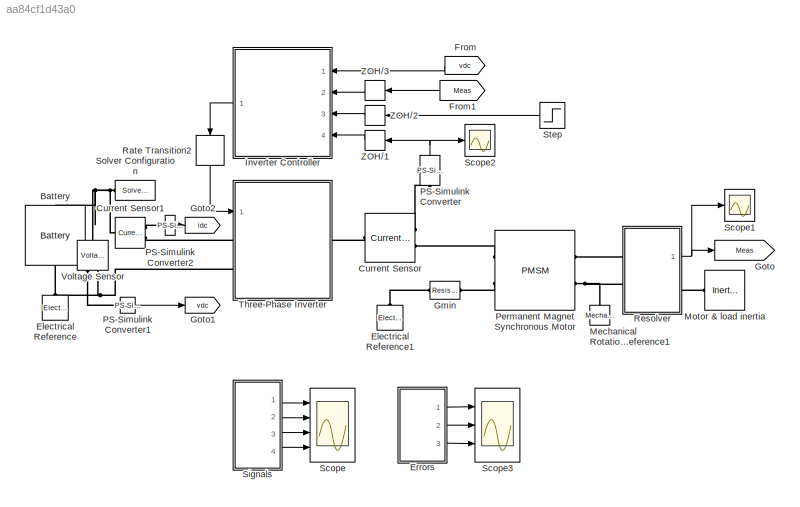
MODEL slx_aa84cf1d43a0
KIND model
CONFIG AbsTol = 1e-3
CONFIG EnableMultiTasking = on
CONFIG FixedStep = auto
CONFIG InitFcn = DriveTrainInitialise;
CONFIG MaxStep = auto
CONFIG MinStep = auto
CONFIG RelTol = 1e-3
CONFIG SampleTimeConstraint = Unconstrained
CONFIG Solver = VariableStepAuto
CONFIG SolverName = VariableStepAuto
CONFIG StartTime = 0.0
CONFIG StopTime = 0.6
BLOCK [Reference] Battery  REF=ee_lib/Sources/Battery
  Ports = [0, 0, 0, 0, 0, 1, 1]
  SourceBlock = ee_lib/Sources/Battery
  SourceProductBaseCode = PS
  SourceProductName = Simscape Electrical
  SourceType = Battery
BLOCK [Reference] Current Sensor  REF=ee_lib/Sensors &
Transducers/Current Sensor
(Three-Phase)
  Ports = [0, 0, 0, 0, 0, 1, 2]
  SourceBlock = ee_lib/Sensors &\nTransducers/Current Sensor\n(Three-Phase)
  SourceProductBaseCode = PS
  SourceProductName = Simscape Electrical
  SourceType = Current Sensor\n(Three-Phase)
BLOCK [Reference] Current Sensor1  REF=fl_lib/Electrical/Electrical Sensors/Current Sensor
  Ports = [0, 0, 0, 0, 0, 1, 2]
  SourceBlock = fl_lib/Electrical/Electrical Sensors/Current Sensor
  SourceProductBaseCode = SS
  SourceProductName = Simscape
  SourceType = Current Sensor
BLOCK [Reference] Electrical Reference  REF=fl_lib/Electrical/Electrical Elements/Electrical Reference
  Ports = [0, 0, 0, 0, 0, 1]
  SourceBlock = fl_lib/Electrical/Electrical Elements/Electrical Reference
  SourceProductBaseCode = SS
  SourceProductName = Simscape
  SourceType = Electrical Reference
BLOCK [Reference] Electrical Reference1  REF=fl_lib/Electrical/Electrical Elements/Electrical Reference
  Ports = [0, 0, 0, 0, 0, 1]
  SourceBlock = fl_lib/Electrical/Electrical Elements/Electrical Reference
  SourceProductBaseCode = SS
  SourceProductName = Simscape
  SourceType = Electrical Reference
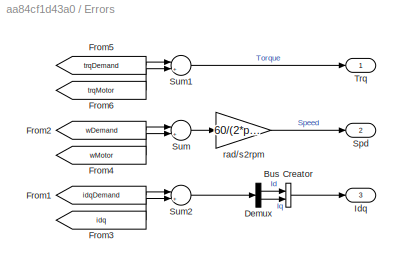
BLOCK [SubSystem] Errors
  Ports = [0, 3]
  RequestExecContextInheritance = off
BLOCK [BusCreator] Errors/Bus Creator
  DisplayOption = bar
  InheritFromInputs = on
  Inputs = 2
  Ports = [2, 1]
BLOCK [Demux] Errors/Demux
  DisplayOption = bar
  Outputs = 2
  Ports = [1, 2]
BLOCK [From] Errors/From1
  GotoTag = idqDemand
  TagVisibility = global
BLOCK [From] Errors/From2
  GotoTag = wDemand
  TagVisibility = global
BLOCK [From] Errors/From3
  GotoTag = idq
  TagVisibility = global
BLOCK [From] Errors/From4
  GotoTag = wMotor
  TagVisibility = global
BLOCK [From] Errors/From5
  GotoTag = trqDemand
  TagVisibility = global
BLOCK [From] Errors/From6
  GotoTag = trqMotor
  TagVisibility = global
BLOCK [Outport] Errors/Idq
  IconDisplay = Port number
  Port = 3
BLOCK [Outport] Errors/Spd
  IconDisplay = Port number
  Port = 2
BLOCK [Sum] Errors/Sum
  IconShape = round
  InputSameDT = off
  Inputs = |+-
  OutDataTypeStr = Inherit: Inherit via internal rule
  Ports = [2, 1]
  SaturateOnIntegerOverflow = off
BLOCK [Sum] Errors/Sum1
  IconShape = round
  InputSameDT = off
  Inputs = |+-
  OutDataTypeStr = Inherit: Inherit via internal rule
  Ports = [2, 1]
  SaturateOnIntegerOverflow = off
BLOCK [Sum] Errors/Sum2
  IconShape = round
  InputSameDT = off
  Inputs = |+-
  OutDataTypeStr = Inherit: Inherit via internal rule
  Ports = [2, 1]
  SaturateOnIntegerOverflow = off
BLOCK [Outport] Errors/Trq
  IconDisplay = Port number
BLOCK [Gain] Errors/rad//s2rpm
  Gain = 60/(2*pi)
  OutDataTypeStr = Inherit: Inherit via internal rule
  ParamDataTypeStr = Inherit: Inherit via internal rule
  SaturateOnIntegerOverflow = off
BLOCK [From] From
  GotoTag = vdc
  TagVisibility = global
BLOCK [From] From1
  GotoTag = Meas
BLOCK [Reference] Gmin  REF=fl_lib/Electrical/Electrical Elements/Resistor
  Ports = [0, 0, 0, 0, 0, 1, 1]
  SourceBlock = fl_lib/Electrical/Electrical Elements/Resistor
  SourceProductBaseCode = SS
  SourceProductName = Simscape
  SourceType = Resistor
BLOCK [Goto] Goto
  GotoTag = Meas
BLOCK [Goto] Goto1
  GotoTag = vdc
  TagVisibility = global
BLOCK [Goto] Goto2
  GotoTag = idc
  TagVisibility = global
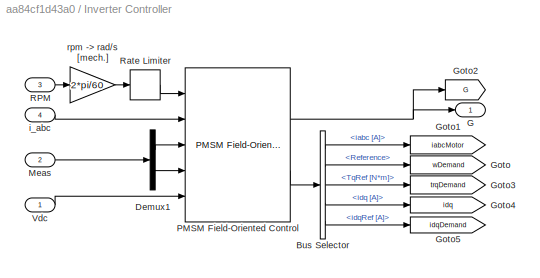
BLOCK [SubSystem] Inverter Controller
  Ports = [4, 1]
  RequestExecContextInheritance = off
BLOCK [BusSelector] Inverter Controller/Bus Selector
  OutputAsBus = off
  OutputSignals = iabc [A],Reference,TqRef [N*m],idq [A],idqRef [A]
  Ports = [1, 5]
BLOCK [Demux] Inverter Controller/Demux1
  DisplayOption = bar
  Outputs = 2
  Ports = [1, 2]
BLOCK [Outport] Inverter Controller/G
  IconDisplay = Port number
BLOCK [Goto] Inverter Controller/Goto
  GotoTag = wDemand
  TagVisibility = global
BLOCK [Goto] Inverter Controller/Goto1
  GotoTag = iabcMotor
  TagVisibility = global
BLOCK [Goto] Inverter Controller/Goto2
  GotoTag = G
  TagVisibility = global
BLOCK [Goto] Inverter Controller/Goto3
  GotoTag = trqDemand
  TagVisibility = global
BLOCK [Goto] Inverter Controller/Goto4
  GotoTag = idq
  TagVisibility = global
BLOCK [Goto] Inverter Controller/Goto5
  GotoTag = idqDemand
  TagVisibility = global
BLOCK [Inport] Inverter Controller/Meas
  IconDisplay = Port number
  Port = 2
BLOCK [Reference] Inverter Controller/PMSM Field-Oriented Control  REF=eePmsmFieldOrientedControl/PMSM Field-Oriented
Control
  Ports = [5, 2]
  SourceBlock = eePmsmFieldOrientedControl/PMSM Field-Oriented\nControl
  SourceProductBaseCode = PS
  SourceProductName = Simscape Electrical
  SourceType = PMSM Field-Oriented Control
BLOCK [Inport] Inverter Controller/RPM
  IconDisplay = Port number
  Port = 3
BLOCK [RateLimiter] Inverter Controller/Rate Limiter
  FallingSlewLimit = -Tmax/J
  RisingSlewLimit = Tmax/J
  SampleTimeMode = inherited
BLOCK [Inport] Inverter Controller/Vdc
  IconDisplay = Port number
BLOCK [Inport] Inverter Controller/i_abc
  IconDisplay = Port number
  Port = 4
BLOCK [Gain] Inverter Controller/rpm -> rad//s [mech.]
  Gain = 2*pi/60
  OutDataTypeStr = Inherit: Inherit via internal rule
  ParamDataTypeStr = Inherit: Inherit via internal rule
  SaturateOnIntegerOverflow = off
BLOCK [Reference] Mechanical Rotational Reference1  REF=fl_lib/Mechanical/Rotational Elements/Mechanical
Rotational Reference
  Ports = [0, 0, 0, 0, 0, 1]
  SourceBlock = fl_lib/Mechanical/Rotational Elements/Mechanical\nRotational Reference
  SourceProductBaseCode = SS
  SourceProductName = Simscape
  SourceType = Mechanical\nRotational Reference
BLOCK [Reference] Motor & load inertia  REF=fl_lib/Mechanical/Rotational Elements/Inertia
  Ports = [0, 0, 0, 0, 0, 1]
  SourceBlock = fl_lib/Mechanical/Rotational Elements/Inertia
  SourceProductBaseCode = SS
  SourceProductName = Simscape
  SourceType = Inertia
BLOCK [Reference] PS-Simulink Converter  REF=nesl_utility/PS-Simulink
Converter
  Ports = [0, 1, 0, 0, 0, 1]
  SourceBlock = nesl_utility/PS-Simulink\nConverter
  SourceProductBaseCode = SS
  SourceProductName = Simscape
  SourceType = PS-Simulink\nConverter
BLOCK [Reference] PS-Simulink Converter1  REF=nesl_utility/PS-Simulink
Converter
  Ports = [0, 1, 0, 0, 0, 1]
  SourceBlock = nesl_utility/PS-Simulink\nConverter
  SourceProductBaseCode = SS
  SourceProductName = Simscape
  SourceType = PS-Simulink\nConverter
BLOCK [Reference] PS-Simulink Converter2  REF=nesl_utility/PS-Simulink
Converter
  Ports = [0, 1, 0, 0, 0, 1]
  SourceBlock = nesl_utility/PS-Simulink\nConverter
  SourceProductBaseCode = SS
  SourceProductName = Simscape
  SourceType = PS-Simulink\nConverter
BLOCK [Reference] Permanent Magnet Synchronous Motor  REF=ee_lib/Electromechanical/Permanent Magnet/PMSM
  Ports = [0, 0, 0, 0, 0, 2, 2]
  SourceBlock = ee_lib/Electromechanical/Permanent Magnet/PMSM
  SourceProductBaseCode = PS
  SourceProductName = Simscape Electrical
  SourceType = PMSM
BLOCK [RateTransition] Rate Transition2
  OutPortSampleTime = Ts
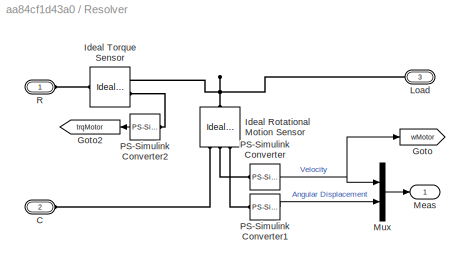
BLOCK [SubSystem] Resolver
  Ports = [0, 1, 0, 0, 0, 2, 1]
  RequestExecContextInheritance = off
BLOCK [PMIOPort] Resolver/C
  Port = 2
  Side = Left
BLOCK [Goto] Resolver/Goto
  GotoTag = wMotor
  TagVisibility = global
BLOCK [Goto] Resolver/Goto2
  GotoTag = trqMotor
  TagVisibility = global
BLOCK [Reference] Resolver/Ideal Rotational Motion Sensor  REF=fl_lib/Mechanical/Mechanical Sensors/Ideal Rotational
Motion Sensor
  Ports = [0, 0, 0, 0, 0, 1, 3]
  SourceBlock = fl_lib/Mechanical/Mechanical Sensors/Ideal Rotational\nMotion Sensor
  SourceProductName = Foundation Library
  SourceType = Ideal Rotational\nMotion Sensor
BLOCK [Reference] Resolver/Ideal Torque Sensor  REF=fl_lib/Mechanical/Mechanical Sensors/Ideal Torque Sensor
  Ports = [0, 0, 0, 0, 0, 1, 2]
  SourceBlock = fl_lib/Mechanical/Mechanical Sensors/Ideal Torque Sensor
  SourceProductName = Foundation Library
  SourceType = Ideal Torque Sensor
BLOCK [PMIOPort] Resolver/Load
  Port = 3
  Side = Right
BLOCK [Outport] Resolver/Meas
  IconDisplay = Port number
BLOCK [Mux] Resolver/Mux
  DisplayOption = bar
  Inputs = 2
  Ports = [2, 1]
BLOCK [Reference] Resolver/PS-Simulink Converter  REF=nesl_utility/PS-Simulink
Converter
  Ports = [0, 1, 0, 0, 0, 1]
  SourceBlock = nesl_utility/PS-Simulink\nConverter
  SourceProductBaseCode = SS
  SourceProductName = Simscape
  SourceType = PS-Simulink\nConverter
BLOCK [Reference] Resolver/PS-Simulink Converter1  REF=nesl_utility/PS-Simulink
Converter
  Ports = [0, 1, 0, 0, 0, 1]
  SourceBlock = nesl_utility/PS-Simulink\nConverter
  SourceProductBaseCode = SS
  SourceProductName = Simscape
  SourceType = PS-Simulink\nConverter
BLOCK [Reference] Resolver/PS-Simulink Converter2  REF=nesl_utility/PS-Simulink
Converter
  Ports = [0, 1, 0, 0, 0, 1]
  SourceBlock = nesl_utility/PS-Simulink\nConverter
  SourceProductBaseCode = SS
  SourceProductName = Simscape
  SourceType = PS-Simulink\nConverter
BLOCK [PMIOPort] Resolver/R
  Side = Left
BLOCK [Scope] Scope
  Floating = off
  NumInputPorts = 4
  Ports = [4]
  ScopeSpecificationString = Simulink.scopes.TimeScopeBlockCfg('CurrentConfiguration', extmgr.ConfigurationSet(extmgr.Configuration('Core','General UI',true),extmgr.Configuration('Core','Source UI',true),extmgr.Configuration('Sources','WiredSimulink',true),extmgr.Configuration('Visuals','Time Domain',true,'SerializedDisplays',{struct('MinYLimReal','-95.17006','MaxYLimReal','106.5314','YLabelReal','','MinYLimMag','0.00000','Ma...<+3703ch>
BLOCK [Scope] Scope1
  Floating = off
  NumInputPorts = 1
  Ports = [1]
  ScopeSpecificationString = Simulink.scopes.TimeScopeBlockCfg('CurrentConfiguration', extmgr.ConfigurationSet(extmgr.Configuration('Core','General UI',true),extmgr.Configuration('Core','Source UI',true),extmgr.Configuration('Sources','WiredSimulink',true,'DataLoggingVariableName','ScopeData1'),extmgr.Configuration('Visuals','Time Domain',true,'SerializedDisplays',{struct('MinYLimReal','-0.00000000000000000000021','MaxYLimRea...<+1553ch>
BLOCK [Scope] Scope2
  Floating = off
  NumInputPorts = 1
  Ports = [1]
  ScopeSpecificationString = Simulink.scopes.TimeScopeBlockCfg('CurrentConfiguration', extmgr.ConfigurationSet(extmgr.Configuration('Core','General UI',true),extmgr.Configuration('Core','Source UI',true),extmgr.Configuration('Sources','WiredSimulink',true,'DataLoggingVariableName','ScopeData3'),extmgr.Configuration('Visuals','Time Domain',true,'SerializedDisplays',{struct('MinYLimReal','-0.00000000006','MaxYLimReal','0.000000...<+1509ch>
BLOCK [Scope] Scope3
  Floating = off
  NumInputPorts = 3
  Ports = [3]
  ScopeSpecificationString = Simulink.scopes.TimeScopeBlockCfg('CurrentConfiguration', extmgr.ConfigurationSet(extmgr.Configuration('Core','General UI',true),extmgr.Configuration('Core','Source UI',true),extmgr.Configuration('Sources','WiredSimulink',true,'DataLoggingVariableName','ScopeData1'),extmgr.Configuration('Visuals','Time Domain',true,'SerializedDisplays',{struct('MinYLimReal','-120.03096','MaxYLimReal','79.86208','Y...<+2935ch>
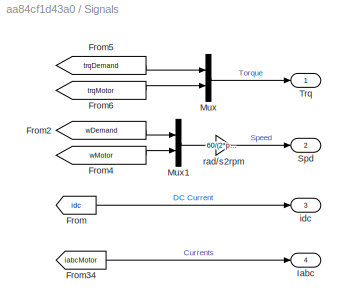
BLOCK [SubSystem] Signals
  Ports = [0, 4]
  RequestExecContextInheritance = off
BLOCK [From] Signals/From
  GotoTag = idc
  TagVisibility = global
BLOCK [From] Signals/From2
  GotoTag = wDemand
  TagVisibility = global
BLOCK [From] Signals/From34
  GotoTag = iabcMotor
  TagVisibility = global
BLOCK [From] Signals/From4
  GotoTag = wMotor
  TagVisibility = global
BLOCK [From] Signals/From5
  GotoTag = trqDemand
  TagVisibility = global
BLOCK [From] Signals/From6
  GotoTag = trqMotor
  TagVisibility = global
BLOCK [Outport] Signals/Iabc
  IconDisplay = Port number
  Port = 4
BLOCK [Mux] Signals/Mux
  DisplayOption = bar
  Inputs = 2
  Ports = [2, 1]
BLOCK [Mux] Signals/Mux1
  DisplayOption = bar
  Inputs = 2
  Ports = [2, 1]
BLOCK [Outport] Signals/Spd
  IconDisplay = Port number
  Port = 2
BLOCK [Outport] Signals/Trq
  IconDisplay = Port number
BLOCK [Outport] Signals/idc
  IconDisplay = Port number
  Port = 3
BLOCK [Gain] Signals/rad//s2rpm
  Gain = 60/(2*pi)
  OutDataTypeStr = Inherit: Inherit via internal rule
  ParamDataTypeStr = Inherit: Inherit via internal rule
  SaturateOnIntegerOverflow = off
BLOCK [Reference] Solver Configuration  REF=nesl_utility/Solver
Configuration
  Ports = [0, 0, 0, 0, 0, 0, 1]
  SourceBlock = nesl_utility/Solver\nConfiguration
  SourceProductBaseCode = SS
  SourceProductName = Simscape
  SourceType = Solver\nConfiguration
BLOCK [Step] Step
  After = 1000
  SampleTime = 0
  Time = 0.1
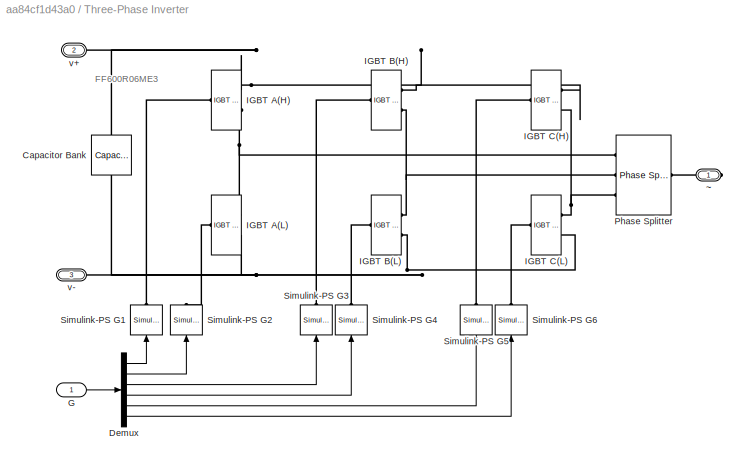
BLOCK [SubSystem] Three-Phase Inverter
  Ports = [1, 0, 0, 0, 0, 2, 1]
  RequestExecContextInheritance = off
BLOCK [Reference] Three-Phase Inverter/Capacitor Bank  REF=fl_lib/Electrical/Electrical Elements/Capacitor
  Ports = [0, 0, 0, 0, 0, 1, 1]
  SourceBlock = fl_lib/Electrical/Electrical Elements/Capacitor
  SourceProductBaseCode = SS
  SourceProductName = Simscape
  SourceType = Capacitor
BLOCK [Demux] Three-Phase Inverter/Demux
  DisplayOption = bar
  Outputs = 6
  Ports = [1, 6]
BLOCK [Inport] Three-Phase Inverter/G
  IconDisplay = Port number
BLOCK [Reference] Three-Phase Inverter/IGBT A(H)  REF=ee_lib/Semiconductors &
Converters/IGBT
(Ideal,
Switching)
  Description = Bamocar D3 IGBT Model Number: FF600R06ME3
  Ports = [0, 0, 0, 0, 0, 1, 2]
  SourceBlock = ee_lib/Semiconductors &\nConverters/IGBT\n(Ideal,\nSwitching)
  SourceProductBaseCode = PS
  SourceProductName = Simscape Electrical
  SourceType = IGBT\n(Ideal,\nSwitching)
BLOCK [Reference] Three-Phase Inverter/IGBT A(L)  REF=ee_lib/Semiconductors &
Converters/IGBT
(Ideal,
Switching)
  Description = Bamocar D3 IGBT Model Number: FF600R06ME3
  Ports = [0, 0, 0, 0, 0, 1, 2]
  SourceBlock = ee_lib/Semiconductors &\nConverters/IGBT\n(Ideal,\nSwitching)
  SourceProductBaseCode = PS
  SourceProductName = Simscape Electrical
  SourceType = IGBT\n(Ideal,\nSwitching)
BLOCK [Reference] Three-Phase Inverter/IGBT B(H)  REF=ee_lib/Semiconductors &
Converters/IGBT
(Ideal,
Switching)
  Description = Bamocar D3 IGBT Model Number: FF600R06ME3
  Ports = [0, 0, 0, 0, 0, 1, 2]
  SourceBlock = ee_lib/Semiconductors &\nConverters/IGBT\n(Ideal,\nSwitching)
  SourceProductBaseCode = PS
  SourceProductName = Simscape Electrical
  SourceType = IGBT\n(Ideal,\nSwitching)
BLOCK [Reference] Three-Phase Inverter/IGBT B(L)  REF=ee_lib/Semiconductors &
Converters/IGBT
(Ideal,
Switching)
  Description = Bamocar D3 IGBT Model Number: FF600R06ME3
  Ports = [0, 0, 0, 0, 0, 1, 2]
  SourceBlock = ee_lib/Semiconductors &\nConverters/IGBT\n(Ideal,\nSwitching)
  SourceProductBaseCode = PS
  SourceProductName = Simscape Electrical
  SourceType = IGBT\n(Ideal,\nSwitching)
BLOCK [Reference] Three-Phase Inverter/IGBT C(H)  REF=ee_lib/Semiconductors &
Converters/IGBT
(Ideal,
Switching)
  Description = Bamocar D3 IGBT Model Number: FF600R06ME3
  Ports = [0, 0, 0, 0, 0, 1, 2]
  SourceBlock = ee_lib/Semiconductors &\nConverters/IGBT\n(Ideal,\nSwitching)
  SourceProductBaseCode = PS
  SourceProductName = Simscape Electrical
  SourceType = IGBT\n(Ideal,\nSwitching)
BLOCK [Reference] Three-Phase Inverter/IGBT C(L)  REF=ee_lib/Semiconductors &
Converters/IGBT
(Ideal,
Switching)
  Description = Bamocar D3 IGBT Model Number: FF600R06ME3
  Ports = [0, 0, 0, 0, 0, 1, 2]
  SourceBlock = ee_lib/Semiconductors &\nConverters/IGBT\n(Ideal,\nSwitching)
  SourceProductBaseCode = PS
  SourceProductName = Simscape Electrical
  SourceType = IGBT\n(Ideal,\nSwitching)
BLOCK [Reference] Three-Phase Inverter/Phase Splitter  REF=ee_lib/Connectors &
References/Phase Splitter
  Ports = [0, 0, 0, 0, 0, 1, 3]
  SourceBlock = ee_lib/Connectors &\nReferences/Phase Splitter
  SourceProductBaseCode = PS
  SourceProductName = Simscape Electrical
  SourceType = Phase Splitter
BLOCK [Reference] Three-Phase Inverter/Simulink-PS G1  REF=nesl_utility/Simulink-PS
Converter
  Ports = [1, 0, 0, 0, 0, 0, 1]
  SourceBlock = nesl_utility/Simulink-PS\nConverter
  SourceProductBaseCode = SS
  SourceProductName = Simscape
  SourceType = Simulink-PS\nConverter
BLOCK [Reference] Three-Phase Inverter/Simulink-PS G2  REF=nesl_utility/Simulink-PS
Converter
  Ports = [1, 0, 0, 0, 0, 0, 1]
  SourceBlock = nesl_utility/Simulink-PS\nConverter
  SourceProductBaseCode = SS
  SourceProductName = Simscape
  SourceType = Simulink-PS\nConverter
BLOCK [Reference] Three-Phase Inverter/Simulink-PS G3  REF=nesl_utility/Simulink-PS
Converter
  Ports = [1, 0, 0, 0, 0, 0, 1]
  SourceBlock = nesl_utility/Simulink-PS\nConverter
  SourceProductBaseCode = SS
  SourceProductName = Simscape
  SourceType = Simulink-PS\nConverter
BLOCK [Reference] Three-Phase Inverter/Simulink-PS G4  REF=nesl_utility/Simulink-PS
Converter
  Ports = [1, 0, 0, 0, 0, 0, 1]
  SourceBlock = nesl_utility/Simulink-PS\nConverter
  SourceProductBaseCode = SS
  SourceProductName = Simscape
  SourceType = Simulink-PS\nConverter
BLOCK [Reference] Three-Phase Inverter/Simulink-PS G5  REF=nesl_utility/Simulink-PS
Converter
  Ports = [1, 0, 0, 0, 0, 0, 1]
  SourceBlock = nesl_utility/Simulink-PS\nConverter
  SourceProductBaseCode = SS
  SourceProductName = Simscape
  SourceType = Simulink-PS\nConverter
BLOCK [Reference] Three-Phase Inverter/Simulink-PS G6  REF=nesl_utility/Simulink-PS
Converter
  Ports = [1, 0, 0, 0, 0, 0, 1]
  SourceBlock = nesl_utility/Simulink-PS\nConverter
  SourceProductBaseCode = SS
  SourceProductName = Simscape
  SourceType = Simulink-PS\nConverter
BLOCK [PMIOPort] Three-Phase Inverter/v+
  Port = 2
  Side = Left
  Tag = PMCPort
BLOCK [PMIOPort] Three-Phase Inverter/v-
  Port = 3
  Side = Left
  Tag = PMCPort
BLOCK [PMIOPort] Three-Phase Inverter/~
  Side = Right
  Tag = PMCPort
BLOCK [Reference] Voltage Sensor  REF=fl_lib/Electrical/Electrical Sensors/Voltage Sensor
  Ports = [0, 0, 0, 0, 0, 1, 2]
  SourceBlock = fl_lib/Electrical/Electrical Sensors/Voltage Sensor
  SourceProductBaseCode = SS
  SourceProductName = Simscape
  SourceType = Voltage Sensor
BLOCK [ZeroOrderHold] ZOH//1
  SampleTime = Tsc
BLOCK [ZeroOrderHold] ZOH//2
  SampleTime = Tsc
BLOCK [ZeroOrderHold] ZOH//3
  SampleTime = Tsc
ANNOTATION Three-Phase Inverter: FF600R06ME3
LINE Errors/Bus Creator:1 -> Errors/Idq:1
LINE Errors/Demux:1 -> Errors/Bus Creator:1
LINE Errors/Demux:2 -> Errors/Bus Creator:2
LINE Errors/From1:1 -> Errors/Sum2:1
LINE Errors/From2:1 -> Errors/Sum:1
LINE Errors/From3:1 -> Errors/Sum2:2
LINE Errors/From4:1 -> Errors/Sum:2
LINE Errors/From5:1 -> Errors/Sum1:1
LINE Errors/From6:1 -> Errors/Sum1:2
LINE Errors/Sum1:1 -> Errors/Trq:1
LINE Errors/Sum2:1 -> Errors/Demux:1
LINE Errors/Sum:1 -> Errors/rad//s2rpm:1
LINE Errors/rad//s2rpm:1 -> Errors/Spd:1
LINE Errors:1 -> Scope3:1
LINE Errors:2 -> Scope3:2
LINE Errors:3 -> Scope3:3
LINE From1:1 -> ZOH//3:1
LINE From:1 -> Inverter Controller:1
LINE Inverter Controller/Bus Selector:1 -> Inverter Controller/Goto1:1
LINE Inverter Controller/Bus Selector:2 -> Inverter Controller/Goto:1
LINE Inverter Controller/Bus Selector:3 -> Inverter Controller/Goto3:1
LINE Inverter Controller/Bus Selector:4 -> Inverter Controller/Goto4:1
LINE Inverter Controller/Bus Selector:5 -> Inverter Controller/Goto5:1
LINE Inverter Controller/Demux1:1 -> Inverter Controller/PMSM Field-Oriented Control:3
LINE Inverter Controller/Demux1:2 -> Inverter Controller/PMSM Field-Oriented Control:4
LINE Inverter Controller/Meas:1 -> Inverter Controller/Demux1:1
NET Inverter Controller/PMSM Field-Oriented Control:1 -> Inverter Controller/G:1, Inverter Controller/Goto2:1
LINE Inverter Controller/PMSM Field-Oriented Control:2 -> Inverter Controller/Bus Selector:1
LINE Inverter Controller/RPM:1 -> Inverter Controller/rpm -> rad//s [mech.]:1
LINE Inverter Controller/Rate Limiter:1 -> Inverter Controller/PMSM Field-Oriented Control:1
LINE Inverter Controller/Vdc:1 -> Inverter Controller/PMSM Field-Oriented Control:5
LINE Inverter Controller/i_abc:1 -> Inverter Controller/PMSM Field-Oriented Control:2
LINE Inverter Controller/rpm -> rad//s [mech.]:1 -> Inverter Controller/Rate Limiter:1
LINE Inverter Controller:1 -> Rate Transition2:1
LINE PS-Simulink Converter1:1 -> Goto1:1
LINE PS-Simulink Converter2:1 -> Goto2:1
NET PS-Simulink Converter:1 -> Scope2:1, ZOH//1:1
LINE Rate Transition2:1 -> Three-Phase Inverter:1
LINE Resolver/Mux:1 -> Resolver/Meas:1
LINE Resolver/PS-Simulink Converter1:1 -> Resolver/Mux:2
LINE Resolver/PS-Simulink Converter2:1 -> Resolver/Goto2:1
NET Resolver/PS-Simulink Converter:1 -> Resolver/Goto:1, Resolver/Mux:1
NET Resolver:1 -> Goto:1, Scope1:1
LINE Signals/From2:1 -> Signals/Mux1:1
LINE Signals/From34:1 -> Signals/Iabc:1
LINE Signals/From4:1 -> Signals/Mux1:2
LINE Signals/From5:1 -> Signals/Mux:1
LINE Signals/From6:1 -> Signals/Mux:2
LINE Signals/From:1 -> Signals/idc:1
LINE Signals/Mux1:1 -> Signals/rad//s2rpm:1
LINE Signals/Mux:1 -> Signals/Trq:1
LINE Signals/rad//s2rpm:1 -> Signals/Spd:1
LINE Signals:1 -> Scope:1
LINE Signals:2 -> Scope:2
LINE Signals:3 -> Scope:3
LINE Signals:4 -> Scope:4
LINE Step:1 -> ZOH//2:1
LINE Three-Phase Inverter/Demux:1 -> Three-Phase Inverter/Simulink-PS G1:1
LINE Three-Phase Inverter/Demux:2 -> Three-Phase Inverter/Simulink-PS G2:1
LINE Three-Phase Inverter/Demux:3 -> Three-Phase Inverter/Simulink-PS G3:1
LINE Three-Phase Inverter/Demux:4 -> Three-Phase Inverter/Simulink-PS G4:1
LINE Three-Phase Inverter/Demux:5 -> Three-Phase Inverter/Simulink-PS G5:1
LINE Three-Phase Inverter/Demux:6 -> Three-Phase Inverter/Simulink-PS G6:1
LINE Three-Phase Inverter/G:1 -> Three-Phase Inverter/Demux:1
LINE ZOH//1:1 -> Inverter Controller:4
LINE ZOH//2:1 -> Inverter Controller:3
LINE ZOH//3:1 -> Inverter Controller:2
PNET net1: Battery:LConn1 -- Current Sensor1:LConn1 -- Solver Configuration:RConn1 -- Voltage Sensor:LConn1
PNET net2: Battery:RConn1 -- Electrical Reference:LConn1 -- Three-Phase Inverter:LConn2 -- Voltage Sensor:RConn2
PLINE Current Sensor1:RConn1 -- PS-Simulink Converter2:LConn1
PLINE Current Sensor1:RConn2 -- Three-Phase Inverter:LConn1
PLINE Current Sensor:LConn1 -- Three-Phase Inverter:RConn1
PLINE Current Sensor:RConn1 -- PS-Simulink Converter:LConn1
PLINE Current Sensor:RConn2 -- Permanent Magnet Synchronous Motor:LConn1
PLINE Electrical Reference1:LConn1 -- Gmin:LConn1
PLINE Gmin:RConn1 -- Permanent Magnet Synchronous Motor:LConn2
PNET net3: Mechanical Rotational Reference1:LConn1 -- Permanent Magnet Synchronous Motor:RConn2 -- Resolver:LConn2
PLINE Motor & load inertia:LConn1 -- Resolver:RConn1
PLINE PS-Simulink Converter1:LConn1 -- Voltage Sensor:RConn1
PLINE Permanent Magnet Synchronous Motor:RConn1 -- Resolver:LConn1
PLINE Resolver/C:RConn1 -- Resolver/Ideal Rotational Motion Sensor:RConn1
PNET net4: Resolver/Ideal Rotational Motion Sensor:LConn1 -- Resolver/Ideal Torque Sensor:RConn1 -- Resolver/Load:RConn1
PLINE Resolver/Ideal Rotational Motion Sensor:RConn2 -- Resolver/PS-Simulink Converter:LConn1
PLINE Resolver/Ideal Rotational Motion Sensor:RConn3 -- Resolver/PS-Simulink Converter1:LConn1
PLINE Resolver/Ideal Torque Sensor:LConn1 -- Resolver/R:RConn1
PLINE Resolver/Ideal Torque Sensor:RConn2 -- Resolver/PS-Simulink Converter2:LConn1
PNET net5: Three-Phase Inverter/Capacitor Bank:LConn1 -- Three-Phase Inverter/IGBT A(H):RConn1 -- Three-Phase Inverter/IGBT B(H):RConn1 -- Three-Phase Inverter/IGBT C(H):RConn1 -- Three-Phase Inverter/v+:RConn1
PNET net6: Three-Phase Inverter/Capacitor Bank:RConn1 -- Three-Phase Inverter/IGBT A(L):RConn2 -- Three-Phase Inverter/IGBT B(L):RConn2 -- Three-Phase Inverter/IGBT C(L):RConn2 -- Three-Phase Inverter/v-:RConn1
PLINE Three-Phase Inverter/IGBT A(H):LConn1 -- Three-Phase Inverter/Simulink-PS G1:RConn1
PNET net7: Three-Phase Inverter/IGBT A(H):RConn2 -- Three-Phase Inverter/IGBT A(L):RConn1 -- Three-Phase Inverter/Phase Splitter:RConn1
PLINE Three-Phase Inverter/IGBT A(L):LConn1 -- Three-Phase Inverter/Simulink-PS G2:RConn1
PLINE Three-Phase Inverter/IGBT B(H):LConn1 -- Three-Phase Inverter/Simulink-PS G3:RConn1
PNET net8: Three-Phase Inverter/IGBT B(H):RConn2 -- Three-Phase Inverter/IGBT B(L):RConn1 -- Three-Phase Inverter/Phase Splitter:RConn2
PLINE Three-Phase Inverter/IGBT B(L):LConn1 -- Three-Phase Inverter/Simulink-PS G4:RConn1
PLINE Three-Phase Inverter/IGBT C(H):LConn1 -- Three-Phase Inverter/Simulink-PS G5:RConn1
PNET net9: Three-Phase Inverter/IGBT C(H):RConn2 -- Three-Phase Inverter/IGBT C(L):RConn1 -- Three-Phase Inverter/Phase Splitter:RConn3
PLINE Three-Phase Inverter/IGBT C(L):LConn1 -- Three-Phase Inverter/Simulink-PS G6:RConn1
PLINE Three-Phase Inverter/Phase Splitter:LConn1 -- Three-Phase Inverter/~:RConn1
note: NET lines group one-source signal fan-out (src -> all destinations, sorted); 1:1 wires keep LINE; PNET lines group multi-terminal physical nets as a canonical sorted terminal list (undirected conserving connections); 2-terminal nets keep the pairwise PLINE form
